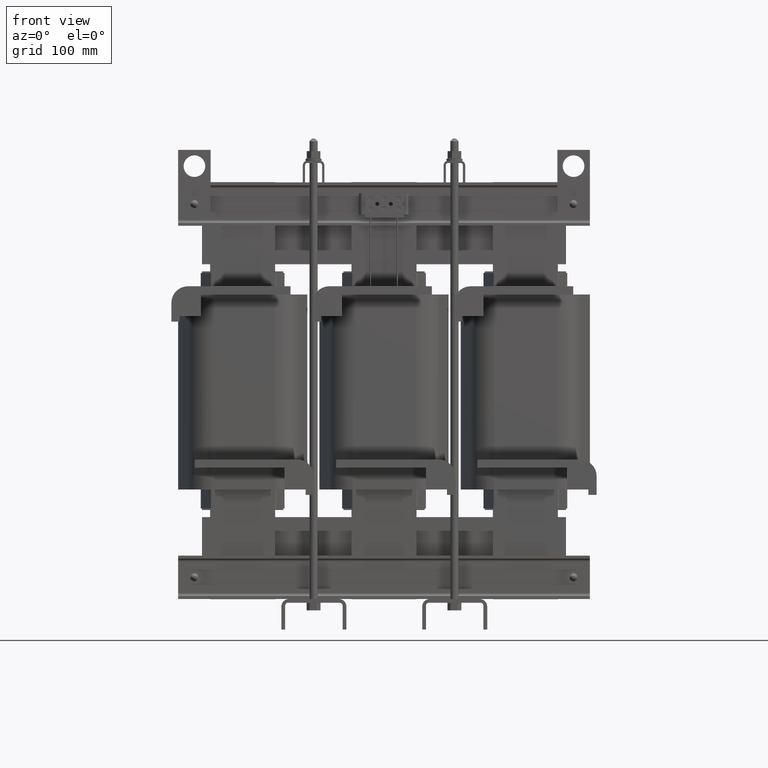
[diagram: clean part render]
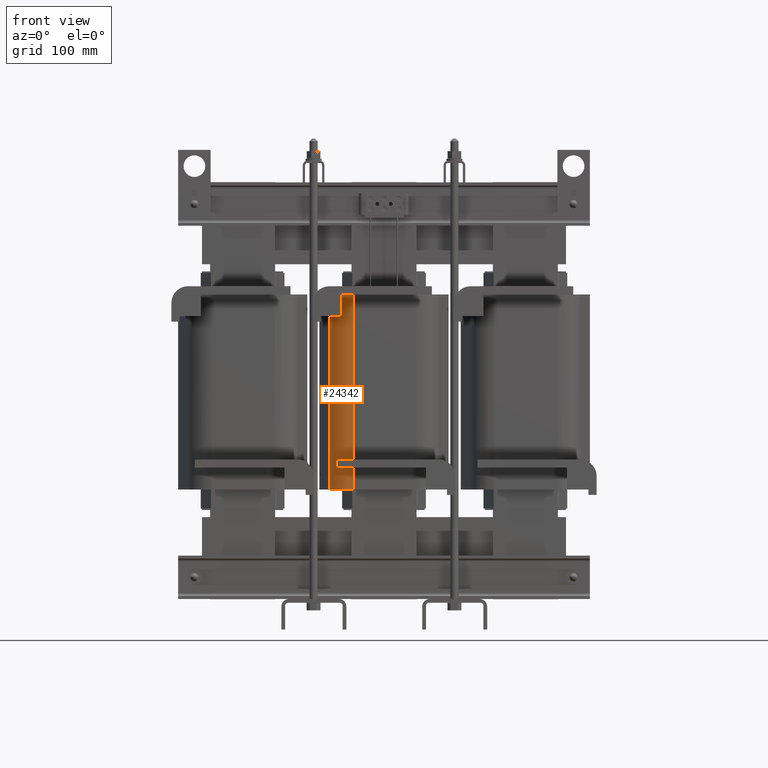
[diagram: same view with one face highlighted and labeled with its STEP entity id]
A machine part, front view. The second image highlights one B-rep face of the part: STEP entity #24342.
In plain terms, the highlighted cylindrical surface (edge-blend (fillet) strip) has radius 28.575 mm, axis along (0, 0, 1).
Its self-contained STEP definition (entity closure, byte-faithful):
#1408=CIRCLE('',#26194,1.125);
#1517=CIRCLE('',#26408,1.125);
#1565=CIRCLE('',#26459,1.125);
#2111=CYLINDRICAL_SURFACE('',#26458,1.125);
#3228=FACE_OUTER_BOUND('',#4601,.T.);
#4601=EDGE_LOOP('',(#19695,#19696,#19697,#19698,#19699,#19700));
#6420=LINE('',#39742,#8773);
#6695=LINE('',#40588,#9048);
#6696=LINE('',#40590,#9049);
#8773=VECTOR('',#29960,0.393700787401575);
#9048=VECTOR('',#30775,0.393700787401575);
#9049=VECTOR('',#30776,0.393700787401575);
#11069=VERTEX_POINT('',#39740);
#11070=VERTEX_POINT('',#39741);
#11087=VERTEX_POINT('',#39782);
#11285=VERTEX_POINT('',#40402);
#11286=VERTEX_POINT('',#40404);
#11372=VERTEX_POINT('',#40589);
#13917=EDGE_CURVE('',#11069,#11070,#6420,.T.);
#13937=EDGE_CURVE('',#11070,#11087,#1408,.T.);
#14254=EDGE_CURVE('',#11286,#11285,#1517,.T.);
#14349=EDGE_CURVE('',#11087,#11286,#6695,.T.);
#14350=EDGE_CURVE('',#11372,#11285,#6696,.T.);
#14351=EDGE_CURVE('',#11372,#11069,#1565,.T.);
#19695=ORIENTED_EDGE('',*,*,#13917,.T.);
#19696=ORIENTED_EDGE('',*,*,#13937,.T.);
#19697=ORIENTED_EDGE('',*,*,#14349,.T.);
#19698=ORIENTED_EDGE('',*,*,#14254,.T.);
#19699=ORIENTED_EDGE('',*,*,#14350,.F.);
#19700=ORIENTED_EDGE('',*,*,#14351,.T.);
#24342=ADVANCED_FACE('',(#3228),#2111,.T.);
#26194=AXIS2_PLACEMENT_3D('',#39784,#29990,#29991);
#26408=AXIS2_PLACEMENT_3D('',#40405,#30626,#30627);
#26458=AXIS2_PLACEMENT_3D('',#40587,#30773,#30774);
#26459=AXIS2_PLACEMENT_3D('',#40591,#30777,#30778);
#29960=DIRECTION('',(0.,0.,-1.));
#29990=DIRECTION('center_axis',(1.79621535976267E-16,-2.14086016770074E-25,
-1.));
#29991=DIRECTION('ref_axis',(0.936329177985221,0.351123440478587,0.));
#30626=DIRECTION('center_axis',(0.,0.,1.));
#30627=DIRECTION('ref_axis',(0.936329177985221,0.351123440478587,0.));
#30773=DIRECTION('center_axis',(0.,0.,1.));
#30774=DIRECTION('ref_axis',(0.936329177985221,0.351123440478587,0.));
#30775=DIRECTION('',(0.,0.,-1.));
#30776=DIRECTION('',(0.,0.,-1.));
#30777=DIRECTION('center_axis',(0.,0.,-1.));
#30778=DIRECTION('ref_axis',(0.936329177985221,0.351123440478587,0.));
#39740=CARTESIAN_POINT('',(-0.0522531300187039,-2.09458173936834,4.5));
#39741=CARTESIAN_POINT('',(-0.0522531300187039,-2.09458173936834,3.5));
#39742=CARTESIAN_POINT('',(-0.0522531300187039,-2.09458173936834,0.));
#39782=CARTESIAN_POINT('',(-0.607075139233748,-1.48109445641443,3.5));
#39784=CARTESIAN_POINT('Origin',(0.446295185999595,-1.08608058587603,3.5));
#40402=CARTESIAN_POINT('',(0.446295184662311,-2.2110805858772,-4.5));
#40404=CARTESIAN_POINT('',(-0.607075139233748,-1.48109445641443,-4.5));
#40405=CARTESIAN_POINT('Origin',(0.446295185999595,-1.08608058587603,-4.5));
#40587=CARTESIAN_POINT('Origin',(0.446295185999595,-1.08608058587603,0.));
#40588=CARTESIAN_POINT('',(-0.607075139233748,-1.48109445641443,0.));
#40589=CARTESIAN_POINT('',(0.446295184662311,-2.2110805858772,4.5));
#40590=CARTESIAN_POINT('',(0.446295184662311,-2.2110805858772,0.));
#40591=CARTESIAN_POINT('Origin',(0.446295185999595,-1.08608058587603,4.5));